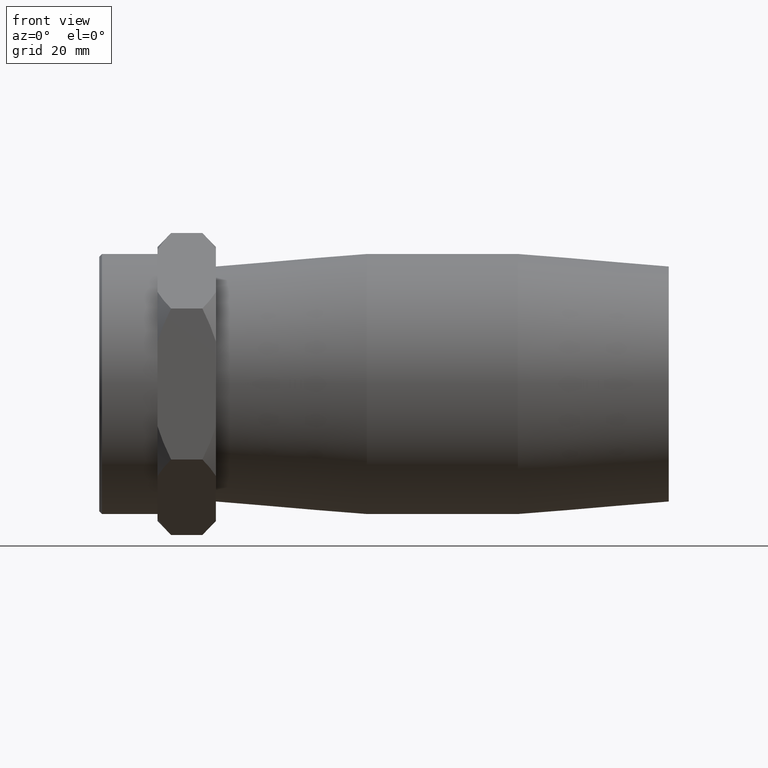
[diagram: clean part render]
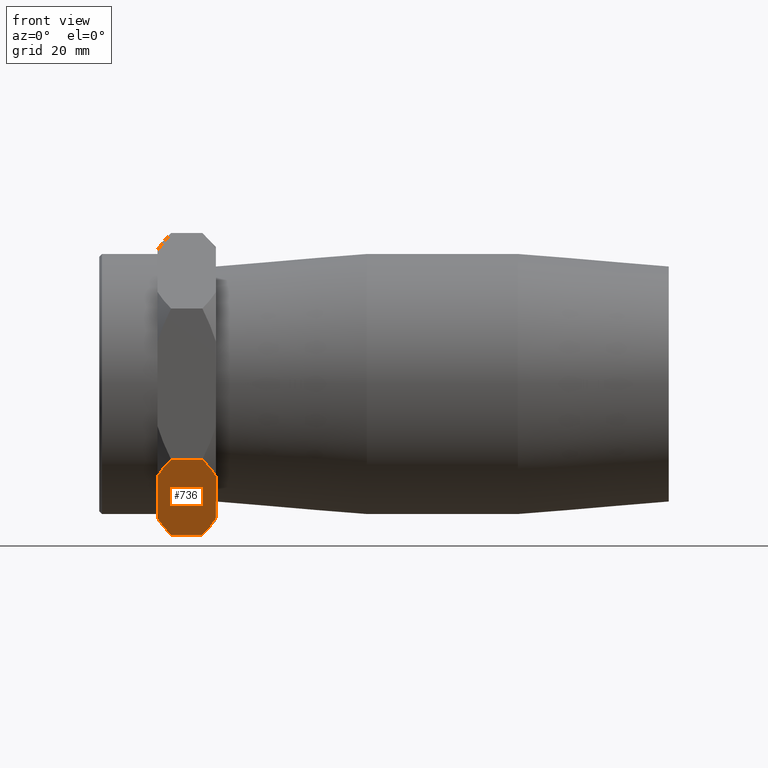
[diagram: same view with one face highlighted and labeled with its STEP entity id]
A machine part, front view. The second image highlights one B-rep face of the part: STEP entity #736.
In plain terms, the highlighted planar face has unit normal (0, -0.5, -0.866).
Its self-contained STEP definition (entity closure, byte-faithful):
#17=LINE('',#1263,#41);
#25=LINE('',#1275,#49);
#26=LINE('',#1276,#50);
#27=LINE('',#1277,#51);
#28=LINE('',#1278,#52);
#41=VECTOR('',#965,9.06752258891827);
#49=VECTOR('',#981,6.70000000000002);
#50=VECTOR('',#982,18.1350451778365);
#51=VECTOR('',#983,6.70000000000002);
#52=VECTOR('',#984,9.06752258891828);
#74=(
BOUNDED_CURVE()
B_SPLINE_CURVE(2,(#1182,#1183,#1184),.UNSPECIFIED.,.F.,.F.)
B_SPLINE_CURVE_WITH_KNOTS((3,3),(0.,0.767433549102515),.UNSPECIFIED.)
CURVE()
GEOMETRIC_REPRESENTATION_ITEM()
RATIONAL_B_SPLINE_CURVE((1.,1.00667029966225,1.))
REPRESENTATION_ITEM('')
);
#76=(
BOUNDED_CURVE()
B_SPLINE_CURVE(2,(#1192,#1193,#1194),.UNSPECIFIED.,.F.,.F.)
B_SPLINE_CURVE_WITH_KNOTS((3,3),(0.,0.767433549102516),.UNSPECIFIED.)
CURVE()
GEOMETRIC_REPRESENTATION_ITEM()
RATIONAL_B_SPLINE_CURVE((1.,1.00667029966225,1.))
REPRESENTATION_ITEM('')
);
#84=(
BOUNDED_CURVE()
B_SPLINE_CURVE(2,(#1236,#1237,#1238),.UNSPECIFIED.,.F.,.F.)
B_SPLINE_CURVE_WITH_KNOTS((3,3),(0.,0.767433549102517),.UNSPECIFIED.)
CURVE()
GEOMETRIC_REPRESENTATION_ITEM()
RATIONAL_B_SPLINE_CURVE((1.,1.00667029966226,1.))
REPRESENTATION_ITEM('')
);
#88=(
BOUNDED_CURVE()
B_SPLINE_CURVE(2,(#1259,#1260,#1261),.UNSPECIFIED.,.F.,.F.)
B_SPLINE_CURVE_WITH_KNOTS((3,3),(0.,0.767433549102517),.UNSPECIFIED.)
CURVE()
GEOMETRIC_REPRESENTATION_ITEM()
RATIONAL_B_SPLINE_CURVE((1.,1.00667029966227,1.))
REPRESENTATION_ITEM('')
);
#105=PLANE('',#819);
#177=FACE_OUTER_BOUND('',#239,.T.);
#239=EDGE_LOOP('',(#575,#576,#577,#578,#579,#580,#581,#582,#583));
#347=VERTEX_POINT('',#1121);
#364=VERTEX_POINT('',#1176);
#365=VERTEX_POINT('',#1180);
#366=VERTEX_POINT('',#1186);
#368=VERTEX_POINT('',#1191);
#378=VERTEX_POINT('',#1230);
#380=VERTEX_POINT('',#1235);
#385=VERTEX_POINT('',#1253);
#386=VERTEX_POINT('',#1257);
#436=EDGE_CURVE('',#364,#365,#74,.T.);
#438=EDGE_CURVE('',#368,#366,#76,.T.);
#450=EDGE_CURVE('',#380,#378,#84,.T.);
#457=EDGE_CURVE('',#385,#386,#88,.T.);
#458=EDGE_CURVE('',#368,#347,#17,.T.);
#466=EDGE_CURVE('',#385,#366,#25,.T.);
#467=EDGE_CURVE('',#386,#380,#26,.T.);
#468=EDGE_CURVE('',#378,#364,#27,.T.);
#469=EDGE_CURVE('',#347,#365,#28,.T.);
#575=ORIENTED_EDGE('',*,*,#438,.T.);
#576=ORIENTED_EDGE('',*,*,#466,.F.);
#577=ORIENTED_EDGE('',*,*,#457,.T.);
#578=ORIENTED_EDGE('',*,*,#467,.T.);
#579=ORIENTED_EDGE('',*,*,#450,.T.);
#580=ORIENTED_EDGE('',*,*,#468,.T.);
#581=ORIENTED_EDGE('',*,*,#436,.T.);
#582=ORIENTED_EDGE('',*,*,#469,.F.);
#583=ORIENTED_EDGE('',*,*,#458,.F.);
#736=ADVANCED_FACE('',(#177),#105,.T.);
#819=AXIS2_PLACEMENT_3D('',#1274,#979,#980);
#965=DIRECTION('',(0.,-0.866025403784439,0.499999999999999));
#979=DIRECTION('center_axis',(0.,-0.499999999999999,-0.866025403784439));
#980=DIRECTION('ref_axis',(0.,-0.866025403784439,0.499999999999999));
#981=DIRECTION('',(-1.,0.,0.));
#982=DIRECTION('',(0.,-0.866025403784439,0.499999999999999));
#983=DIRECTION('',(-1.,0.,0.));
#984=DIRECTION('',(0.,-0.866025403784439,0.499999999999999));
#1121=CARTESIAN_POINT('',(-61.,-14.,-24.2487113059643));
#1176=CARTESIAN_POINT('',(-58.1,-28.,-16.1658075373096));
#1180=CARTESIAN_POINT('',(-61.,-21.8527049113924,-19.7149500115052));
#1182=CARTESIAN_POINT('Ctrl Pts',(-58.1,-28.,-16.1658075373096));
#1183=CARTESIAN_POINT('Ctrl Pts',(-59.9578935726549,-24.782033937106,-18.0237011099645));
#1184=CARTESIAN_POINT('Ctrl Pts',(-61.,-21.8527049113924,-19.7149500115052));
#1186=CARTESIAN_POINT('',(-58.1,4.88498130835069E-14,-32.3316150746191));
#1191=CARTESIAN_POINT('',(-61.,-6.1472950886075,-28.7824726004234));
#1192=CARTESIAN_POINT('Ctrl Pts',(-61.,-6.14729508860751,-28.7824726004234));
#1193=CARTESIAN_POINT('Ctrl Pts',(-59.9578935726549,-3.21796606289387,-30.4737215019642));
#1194=CARTESIAN_POINT('Ctrl Pts',(-58.1,4.6494075381001E-14,-32.3316150746191));
#1230=CARTESIAN_POINT('',(-51.4,-28.,-16.1658075373096));
#1235=CARTESIAN_POINT('',(-48.5,-21.8527049113924,-19.7149500115052));
#1236=CARTESIAN_POINT('Ctrl Pts',(-48.5,-21.8527049113924,-19.7149500115052));
#1237=CARTESIAN_POINT('Ctrl Pts',(-49.5421064273451,-24.782033937106,-18.0237011099645));
#1238=CARTESIAN_POINT('Ctrl Pts',(-51.4,-28.,-16.1658075373096));
#1253=CARTESIAN_POINT('',(-51.4,5.77315972805081E-14,-32.3316150746191));
#1257=CARTESIAN_POINT('',(-48.5,-6.14729508860751,-28.7824726004234));
#1259=CARTESIAN_POINT('Ctrl Pts',(-51.4,6.04422979953013E-14,-32.3316150746191));
#1260=CARTESIAN_POINT('Ctrl Pts',(-49.5421064273451,-3.21796606289394,-30.4737215019641));
#1261=CARTESIAN_POINT('Ctrl Pts',(-48.5,-6.14729508860752,-28.7824726004234));
#1263=CARTESIAN_POINT('',(-61.,4.34217380796288E-14,-32.3316150746191));
#1274=CARTESIAN_POINT('Origin',(-48.5,4.34217380796288E-14,-32.3316150746191));
#1275=CARTESIAN_POINT('',(-48.5,4.34217380796288E-14,-32.3316150746191));
#1276=CARTESIAN_POINT('',(-48.5,4.34217380796288E-14,-32.3316150746191));
#1277=CARTESIAN_POINT('',(-48.5,-28.,-16.1658075373096));
#1278=CARTESIAN_POINT('',(-61.,4.34217380796288E-14,-32.3316150746191));